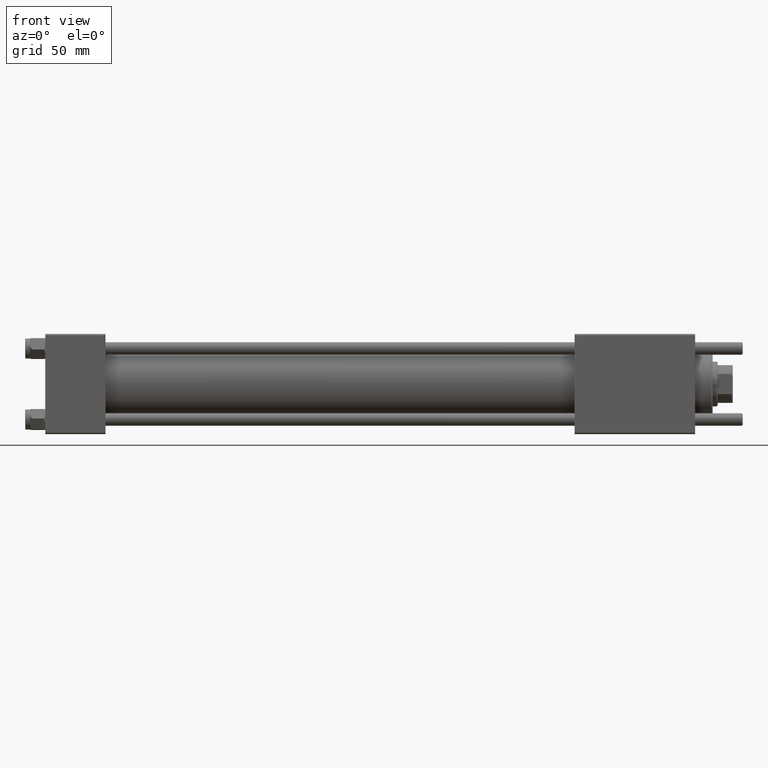
[diagram: clean part render]
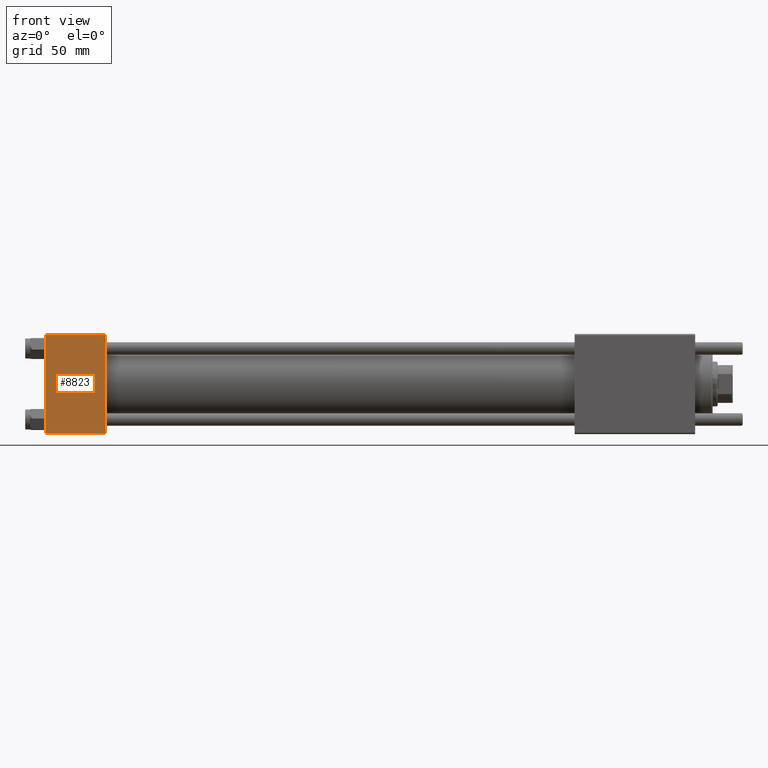
[diagram: same view with one face highlighted and labeled with its STEP entity id]
A machine part, front view. The second image highlights one B-rep face of the part: STEP entity #8823.
In plain terms, the highlighted planar face has unit normal (0, 1, 0).
Its self-contained STEP definition (entity closure, byte-faithful):
#592 = VECTOR ( 'NONE', #34569, 1000.000000000000000 ) ;
#1005 = VERTEX_POINT ( 'NONE', #41175 ) ;
#4064 = CARTESIAN_POINT ( 'NONE',  ( 0.000000000000000000, -20.00000000000000355, 19.49999999999998224 ) ) ;
#5372 = CARTESIAN_POINT ( 'NONE',  ( 24.00000000000000000, -20.00000000000000355, 19.99999999999998934 ) ) ;
#5938 = LINE ( 'NONE', #5372, #43526 ) ;
#5944 = ORIENTED_EDGE ( 'NONE', *, *, #43983, .T. ) ;
#7567 = LINE ( 'NONE', #30200, #28838 ) ;
#8823 = ADVANCED_FACE ( 'NONE', ( #56184 ), #12078, .F. ) ;
#9478 = ORIENTED_EDGE ( 'NONE', *, *, #41828, .F. ) ;
#10450 = VECTOR ( 'NONE', #30785, 1000.000000000000000 ) ;
#12078 = PLANE ( 'NONE',  #36108 ) ;
#14009 = CARTESIAN_POINT ( 'NONE',  ( 24.00000000000000000, -20.00000000000000355, 19.49999999999998224 ) ) ;
#14289 = EDGE_CURVE ( 'NONE', #39525, #1005, #7567, .T. ) ;
#16087 = DIRECTION ( 'NONE',  ( -0.000000000000000000, 1.000000000000000000, 8.673617379884036705E-17 ) ) ;
#17065 = CARTESIAN_POINT ( 'NONE',  ( 24.00000000000000000, -20.00000000000000000, -19.49999999999999645 ) ) ;
#17125 = VERTEX_POINT ( 'NONE', #14009 ) ;
#21574 = DIRECTION ( 'NONE',  ( 0.000000000000000000, 8.673617379884036705E-17, -1.000000000000000000 ) ) ;
#24840 = LINE ( 'NONE', #17065, #592 ) ;
#25107 = CARTESIAN_POINT ( 'NONE',  ( 24.00000000000000000, -20.00000000000000000, -19.49999999999999645 ) ) ;
#27940 = ORIENTED_EDGE ( 'NONE', *, *, #31760, .T. ) ;
#28198 = EDGE_LOOP ( 'NONE', ( #36477, #5944, #9478, #27940 ) ) ;
#28838 = VECTOR ( 'NONE', #21574, 1000.000000000000000 ) ;
#29563 = DIRECTION ( 'NONE',  ( 0.000000000000000000, -8.673617379884036705E-17, 1.000000000000000000 ) ) ;
#30200 = CARTESIAN_POINT ( 'NONE',  ( 0.000000000000000000, -20.00000000000000355, 19.99999999999998934 ) ) ;
#30392 = CARTESIAN_POINT ( 'NONE',  ( 24.00000000000000000, -20.00000000000000355, 19.99999999999998934 ) ) ;
#30785 = DIRECTION ( 'NONE',  ( -1.000000000000000000, 0.000000000000000000, 0.000000000000000000 ) ) ;
#31760 = EDGE_CURVE ( 'NONE', #17125, #39525, #34515, .T. ) ;
#34515 = LINE ( 'NONE', #51986, #10450 ) ;
#34569 = DIRECTION ( 'NONE',  ( 1.000000000000000000, 0.000000000000000000, 0.000000000000000000 ) ) ;
#36108 = AXIS2_PLACEMENT_3D ( 'NONE', #30392, #16087, #29563 ) ;
#36477 = ORIENTED_EDGE ( 'NONE', *, *, #14289, .T. ) ;
#39525 = VERTEX_POINT ( 'NONE', #4064 ) ;
#40627 = DIRECTION ( 'NONE',  ( 0.000000000000000000, 8.673617379884036705E-17, -1.000000000000000000 ) ) ;
#41175 = CARTESIAN_POINT ( 'NONE',  ( 0.000000000000000000, -20.00000000000000000, -19.49999999999999645 ) ) ;
#41828 = EDGE_CURVE ( 'NONE', #17125, #49781, #5938, .T. ) ;
#43526 = VECTOR ( 'NONE', #40627, 1000.000000000000000 ) ;
#43983 = EDGE_CURVE ( 'NONE', #1005, #49781, #24840, .T. ) ;
#49781 = VERTEX_POINT ( 'NONE', #25107 ) ;
#51986 = CARTESIAN_POINT ( 'NONE',  ( 24.00000000000000000, -20.00000000000000355, 19.49999999999998224 ) ) ;
#56184 = FACE_OUTER_BOUND ( 'NONE', #28198, .T. ) ;